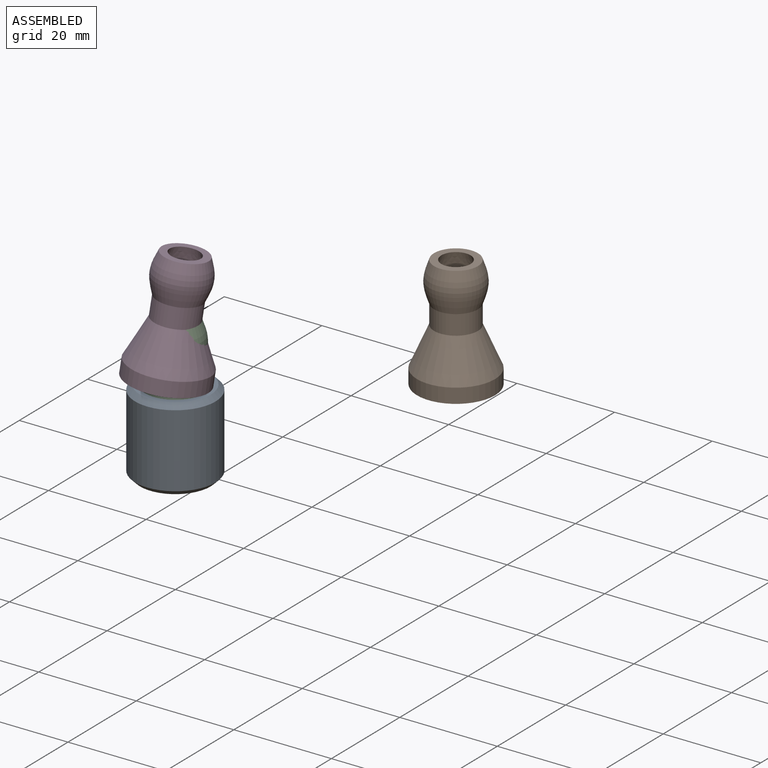
[diagram: assembled view]
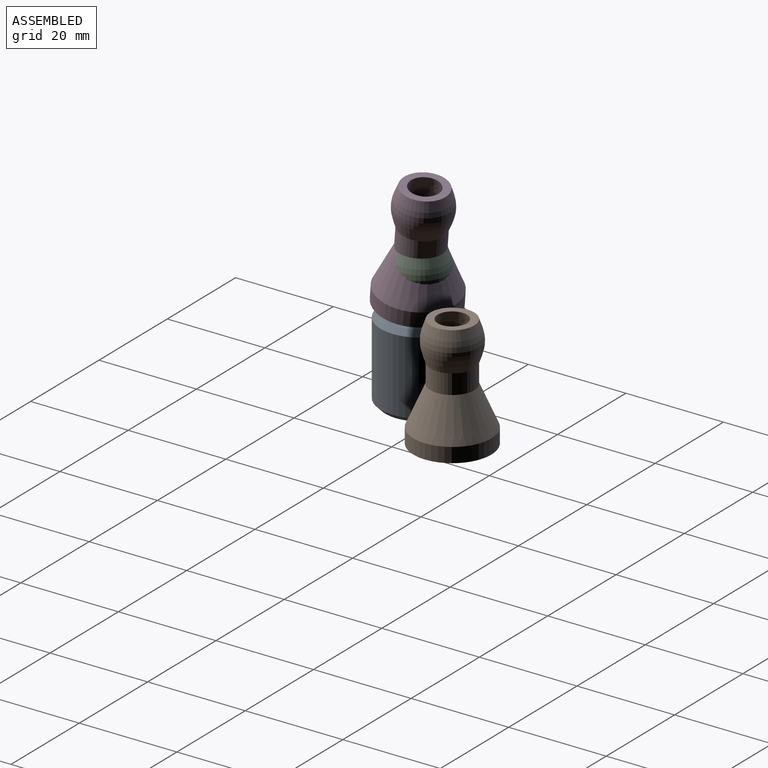
[diagram: assembled view, second angle]
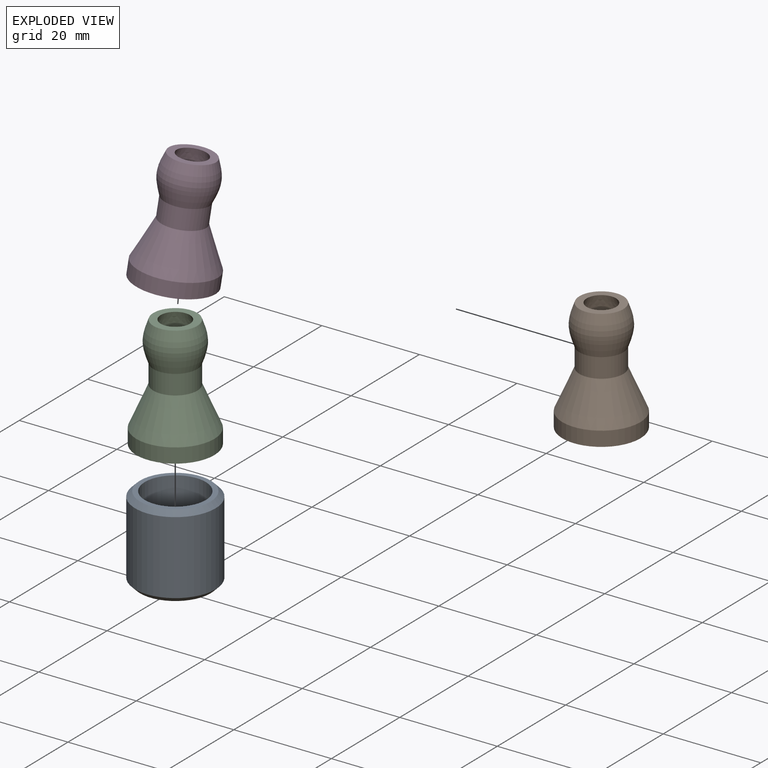
[diagram: exploded view]
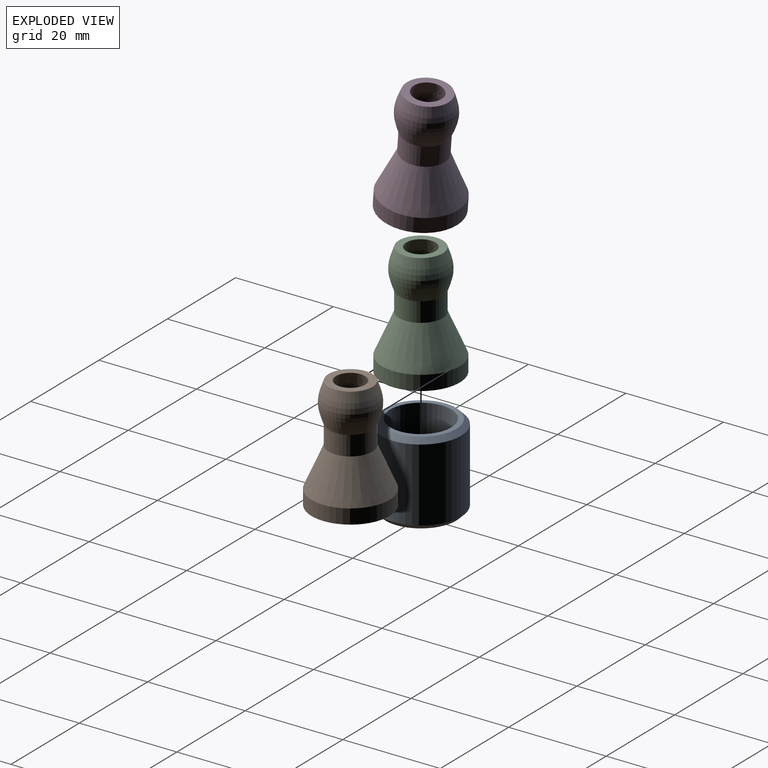
[diagram: exploded view, second angle]
ASSEMBLY  parts=4 mates=2
PART A: 16 faces, bbox 16.5x16.5x17 mm
  f0: cylinder r=6.25mm len=12.5mm, axis (0,0,-1), area 432mm2, adj f2,f3
  f1: cylinder r=8.25mm len=16.5mm, axis (0,0,-1), area 777.5mm2, adj f13,f14
  f2: plane 14.5x14.5mm, normal (0,0,1), area 42.4mm2, adj f0,f13
  f3: plane 12.5x12.5mm, normal (0,0,1), area 92.7mm2, adj f0,f4,f5,f6,f7,f8,f9
  f4: plane 3.4x3mm, normal (-1,0,0), area 10.2mm2, adj f3,f5,f9,f12
  f5: plane 3x2.94mm, normal (-0.5,0.87,0), area 10.2mm2, adj f3,f4,f6,f12
  f6: plane 3x2.94mm, normal (0.5,0.87,0), area 10.2mm2, adj f3,f5,f7,f12
  f7: plane 3.4x3mm, normal (1,0,0), area 10.2mm2, adj f3,f6,f8,f12
  f8: plane 3x2.94mm, normal (0.5,-0.87,0), area 10.2mm2, adj f3,f7,f9,f12
  f9: plane 3x2.94mm, normal (-0.5,-0.87,0), area 10.2mm2, adj f3,f4,f8,f12
  f10: cylinder r=1.5mm len=3mm, axis (0,0,1), area 18.8mm2, adj f12,f15
  f11: plane 14.5x14.5mm, normal (0,0,-1), area 145.5mm2, adj f14,f15
  f12: plane 6.8x5.89mm, normal (0,0,1), area 23mm2, adj f4,f5,f6,f7,f8,f9,f10
  f13: cone r=7.25mm half-angle=45deg, axis (0,0,-1), area 68.9mm2, adj f1,f2
  f14: cone r=8.25mm half-angle=45deg, axis (0,0,1), area 68.9mm2, adj f1,f11
  f15: cone r=2.5mm half-angle=45deg, axis (0,0,-1), area 17.8mm2, adj f10,f11
PART B: 12 faces, bbox 16x16x23 mm
  f0: plane 7x7mm, normal (0,0,-1), area 10.2mm2, adj f2,f4
  f1: plane 9x9mm, normal (0,0,1), area 35.3mm2, adj f2,f3
  f2: revolved ~8x8mm, area 188.5mm2, adj f0,f1
  f3: revolved ~11x11mm, area 266.7mm2, adj f1,f5
  f4: cylinder r=3.5mm len=7mm, axis (0,0,1), area 88mm2, adj f0,f6
  f5: cylinder r=4.5mm len=9mm, axis (0,0,1), area 113.1mm2, adj f3,f11
  f6: plane 7x7mm, normal (0,0,1), area 38.5mm2, adj f4
  f7: cylinder r=6mm len=12mm, axis (0,0,-1), area 113.1mm2, adj f9,f10
  f8: cylinder r=8mm len=16mm, axis (0,0,-1), area 150.8mm2, adj f9,f11
  f9: plane 16x16mm, normal (0,0,-1), area 88mm2, adj f7,f8
  f10: plane 12x12mm, normal (0,0,-1), area 113.1mm2, adj f7
  f11: cone r=8mm half-angle=23.6deg, axis (0,0,-1), area 342.9mm2, adj f5,f8
PART C: same geometry as B
PART D: same geometry as B
PLACE A t=(0,0,-23)mm
PLACE B t=(35.57,31.36,-14.39)mm
PLACE C t=(0,0,-23)mm fixed
PLACE D rot(axis=(-0.54,0.42,0.73),12.5deg) t=(-0.9,-1.37,-10.88)mm
MATE ball D.f4 <-> C.f4  axis (-0.08,-0.12,-0.99) through (0,0,0)mm
MATE fastened A.f0 <-> C.f4  axis (0,0,1) through (0,0,-23)mm
